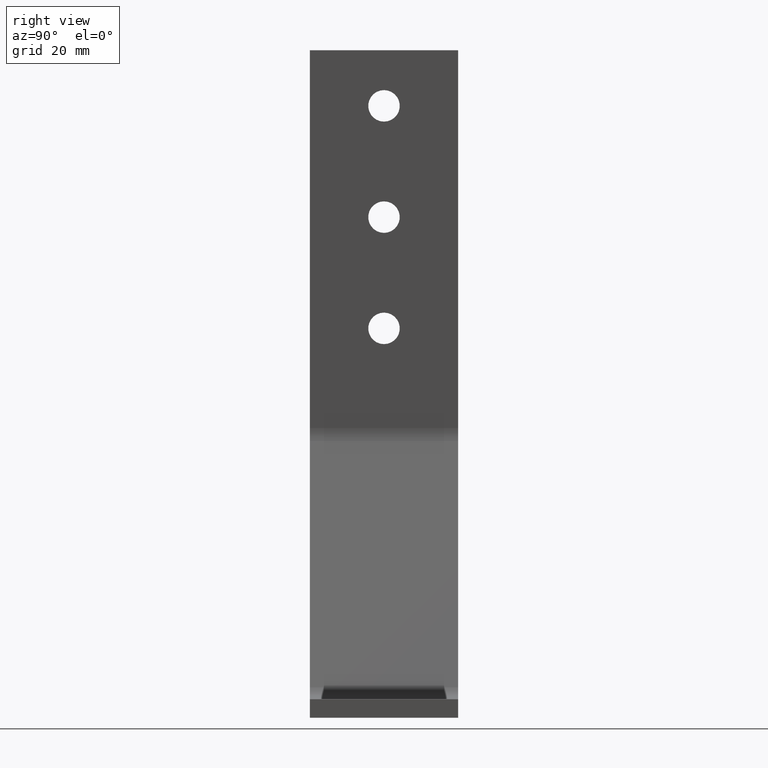
[diagram: clean part render]
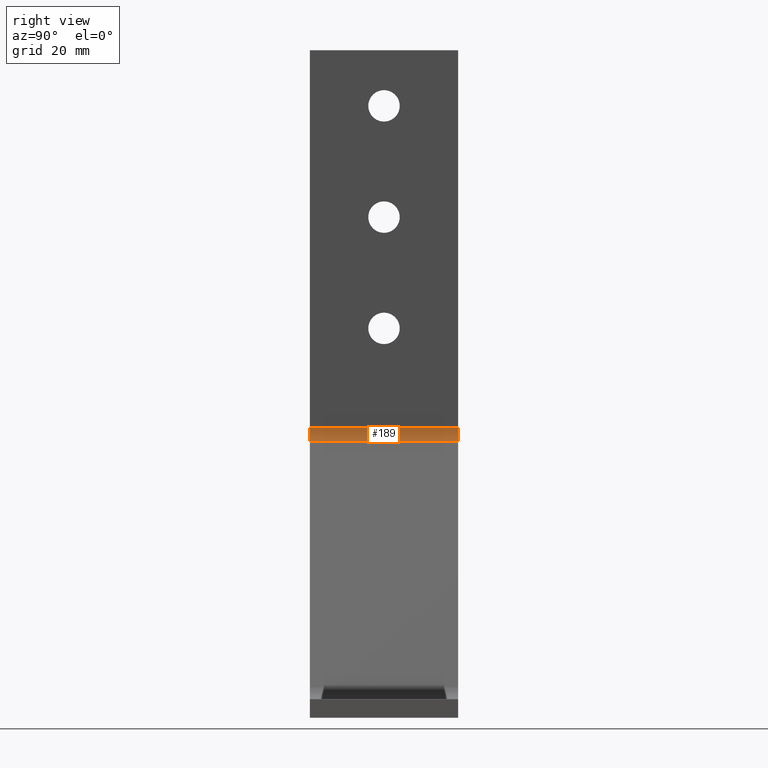
[diagram: same view with one face highlighted and labeled with its STEP entity id]
A machine part, right view. The second image highlights one B-rep face of the part: STEP entity #189.
In plain terms, the highlighted cylindrical surface (partial cylindrical patch) has radius 10 mm, axis along (0, 1, -0).
Its self-contained STEP definition (entity closure, byte-faithful):
#132=CARTESIAN_POINT('',(-44.345195719436219,19.999999999919947,74.614297328341053));
#133=VERTEX_POINT('',#132);
#140=CARTESIAN_POINT('',(-44.345195719436219,-19.999999999919954,74.614297328341053));
#141=VERTEX_POINT('',#140);
#142=CARTESIAN_POINT('',(-44.345195719436219,-19.999999999919954,74.614297328341053));
#143=DIRECTION('',(0.0,1.0,0.0));
#144=VECTOR('',#143,39.999999999839901);
#145=LINE('',#142,#144);
#146=EDGE_CURVE('',#141,#133,#145,.T.);
#157=CARTESIAN_POINT('',(-34.999999999855618,-19.999999999919954,78.173414769790213));
#158=DIRECTION('',(0.0,1.0,-6.123234E-017));
#159=DIRECTION('',(-0.934519571961353,-2.179331E-017,-0.355911744146170));
#160=AXIS2_PLACEMENT_3D('',#157,#158,#159);
#161=CYLINDRICAL_SURFACE('',#160,9.999999999964766);
#162=ORIENTED_EDGE('',*,*,#146,.T.);
#163=CARTESIAN_POINT('',(-44.999999999820389,19.999999999919947,78.173414769789403));
#164=VERTEX_POINT('',#163);
#165=CARTESIAN_POINT('',(-34.999999999855611,19.999999999919947,78.173414769790213));
#166=DIRECTION('',(0.0,1.0,-6.123234E-017));
#167=DIRECTION('',(-1.0,-4.959934E-030,-8.100187E-014));
#168=AXIS2_PLACEMENT_3D('',#165,#166,#167);
#169=CIRCLE('',#168,9.999999999964766);
#170=EDGE_CURVE('',#133,#164,#169,.T.);
#171=ORIENTED_EDGE('',*,*,#170,.T.);
#172=CARTESIAN_POINT('',(-44.999999999820389,-19.999999999919954,78.173414769789403));
#173=VERTEX_POINT('',#172);
#174=CARTESIAN_POINT('',(-44.999999999820389,-19.999999999919954,78.173414769789403));
#175=DIRECTION('',(0.0,1.0,0.0));
#176=VECTOR('',#175,39.999999999839901);
#177=LINE('',#174,#176);
#178=EDGE_CURVE('',#173,#164,#177,.T.);
#179=ORIENTED_EDGE('',*,*,#178,.F.);
#180=CARTESIAN_POINT('',(-34.999999999855611,-19.999999999919954,78.173414769790213));
#181=DIRECTION('',(0.0,1.0,-6.123234E-017));
#182=DIRECTION('',(-1.0,-4.959934E-030,-8.100187E-014));
#183=AXIS2_PLACEMENT_3D('',#180,#181,#182);
#184=CIRCLE('',#183,9.999999999964766);
#185=EDGE_CURVE('',#141,#173,#184,.T.);
#186=ORIENTED_EDGE('',*,*,#185,.F.);
#187=EDGE_LOOP('',(#162,#171,#179,#186));
#188=FACE_OUTER_BOUND('',#187,.T.);
#189=ADVANCED_FACE('',(#188),#161,.F.);